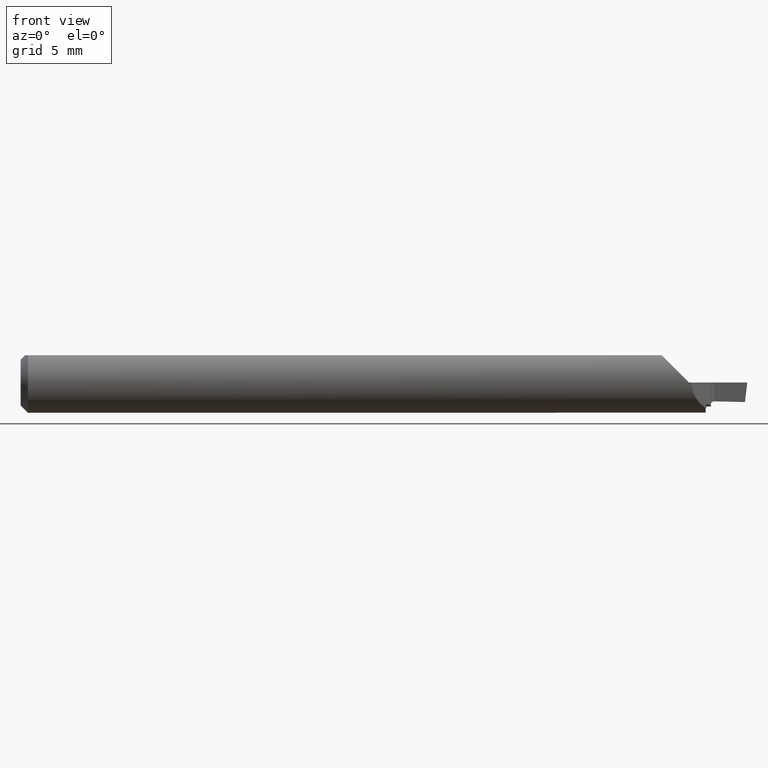
[diagram: clean part render]
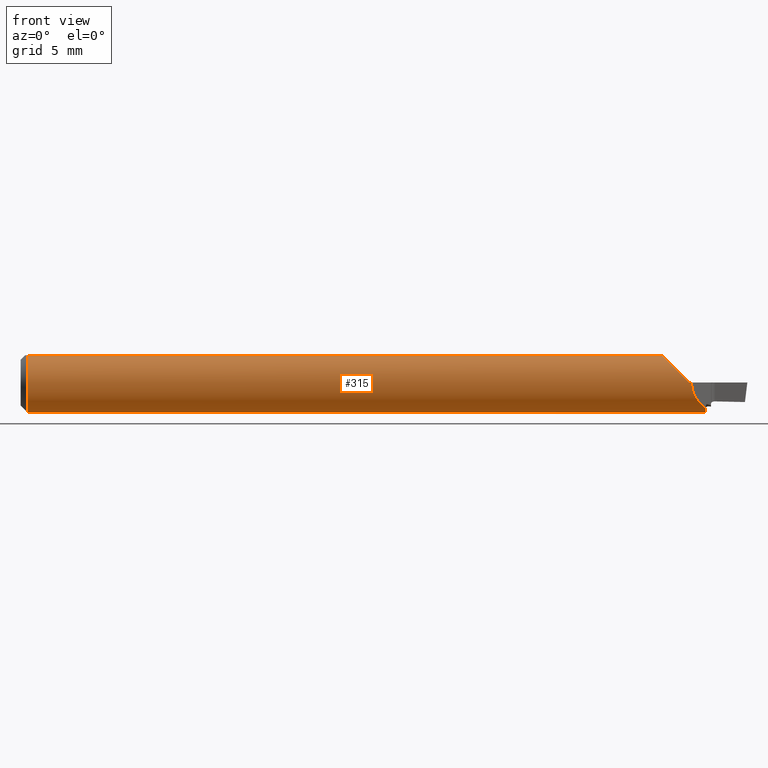
[diagram: same view with one face highlighted and labeled with its STEP entity id]
A machine part, front view. The second image highlights one B-rep face of the part: STEP entity #315.
In plain terms, the highlighted cylindrical surface (edge-blend (fillet) strip) has radius 1.5837 mm, axis along (-1, -0, -0).
Its self-contained STEP definition (entity closure, byte-faithful):
#9 = B_SPLINE_CURVE_WITH_KNOTS ( 'NONE', 3,
 ( #183, #193, #57, #405, #768, #513, #536, #657, #460, #130, #259, #850, #593, #654 ),
 .UNSPECIFIED., .F., .F.,
 ( 4, 2, 2, 2, 2, 2, 4 ),
 ( 1.969247296002426663E-07, 2.779231371840833157E-05, 5.538770270721642087E-05, 0.0001105784806848325520, 0.0002209600366400678501, 0.0004417231485505385006, 0.0008832493723714796930 ),
 .UNSPECIFIED. ) ;
#14 = VERTEX_POINT ( 'NONE', #786 ) ;
#19 = LINE ( 'NONE', #225, #698 ) ;
#20 = VERTEX_POINT ( 'NONE', #472 ) ;
#26 = CARTESIAN_POINT ( 'NONE',  ( 0.01500000000000011394, 0.000000000000000000, 0.000000000000000000 ) ) ;
#28 = EDGE_CURVE ( 'NONE', #468, #14, #574, .T. ) ;
#42 = ORIENTED_EDGE ( 'NONE', *, *, #564, .T. ) ;
#50 = CARTESIAN_POINT ( 'NONE',  ( 0.000000000000000000, 0.000000000000000000, 0.000000000000000000 ) ) ;
#53 = CARTESIAN_POINT ( 'NONE',  ( 1.323499999999999677, -0.02668707552355638682, 0.05634999999999998344 ) ) ;
#55 = ORIENTED_EDGE ( 'NONE', *, *, #660, .T. ) ;
#57 = CARTESIAN_POINT ( 'NONE',  ( 1.104319580330644035, -0.003902547811360122451, -0.06222834581043044239 ) ) ;
#78 = CARTESIAN_POINT ( 'NONE',  ( 1.323499999999999677, -0.02668707552355638682, 0.05634999999999998344 ) ) ;
#79 = LINE ( 'NONE', #370, #363 ) ;
#89 = DIRECTION ( 'NONE',  ( -1.000000000000000000, -0.000000000000000000, -0.000000000000000000 ) ) ;
#92 = CIRCLE ( 'NONE', #576, 0.06235000000000000264 ) ;
#94 = CARTESIAN_POINT ( 'NONE',  ( 0.01500000000000011394, 0.02668707552355635559, 0.05635000000000000425 ) ) ;
#97 = CARTESIAN_POINT ( 'NONE',  ( 0.01500000000000011394, 0.000000000000000000, 0.000000000000000000 ) ) ;
#98 = CARTESIAN_POINT ( 'NONE',  ( 1.384999999999999787, -0.06234999999999998183, 0.000000000000000000 ) ) ;
#110 = AXIS2_PLACEMENT_3D ( 'NONE', #50, #719, #400 ) ;
#114 = VERTEX_POINT ( 'NONE', #741 ) ;
#121 = VERTEX_POINT ( 'NONE', #598 ) ;
#130 = CARTESIAN_POINT ( 'NONE',  ( 1.101213335745415689, 0.006224460120085395856, -0.06210157390335328820 ) ) ;
#131 = AXIS2_PLACEMENT_3D ( 'NONE', #133, #541, #139 ) ;
#133 = CARTESIAN_POINT ( 'NONE',  ( 1.100000000000000089, 0.000000000000000000, 0.000000000000000000 ) ) ;
#134 = VERTEX_POINT ( 'NONE', #700 ) ;
#139 = DIRECTION ( 'NONE',  ( 0.000000000000000000, 0.000000000000000000, -1.000000000000000000 ) ) ;
#152 = EDGE_CURVE ( 'NONE', #170, #612, #19, .T. ) ;
#158 = CARTESIAN_POINT ( 'NONE',  ( 1.414154425502611945, -0.03319557449738821941, -0.05277855941372736059 ) ) ;
#160 = CARTESIAN_POINT ( 'NONE',  ( 1.100000000000000089, 0.02786438881009973417, 0.05577722058546472073 ) ) ;
#170 = VERTEX_POINT ( 'NONE', #213 ) ;
#181 = VERTEX_POINT ( 'NONE', #810 ) ;
#183 = CARTESIAN_POINT ( 'NONE',  ( 1.104999999999999982, -0.004152913094840915767, -0.06221154083308578359 ) ) ;
#192 =( BOUNDED_CURVE ( )  B_SPLINE_CURVE ( 3, ( #511, #310, #307, #243 ),
 .UNSPECIFIED., .F., .T. ) 
 B_SPLINE_CURVE_WITH_KNOTS ( ( 4, 4 ),
 ( 1.637452139464578682, 2.132237832494114915 ),
 .UNSPECIFIED. ) 
 CURVE ( )  GEOMETRIC_REPRESENTATION_ITEM ( )  RATIONAL_B_SPLINE_CURVE ( ( 1.000000000000000000, 0.9797027654045171730, 0.9797027654045171730, 1.000000000000000000 ) ) 
 REPRESENTATION_ITEM ( '' )  );
#193 = CARTESIAN_POINT ( 'NONE',  ( 1.104632508610592811, -0.004152913094840731886, -0.06221154083308579746 ) ) ;
#213 = CARTESIAN_POINT ( 'NONE',  ( 1.413647483962142459, -0.004152913094841584503, -0.06221154083308579746 ) ) ;
#216 = CARTESIAN_POINT ( 'NONE',  ( 1.334111011196256191, -0.04909232110324725923, 0.04573898880374377418 ) ) ;
#222 = EDGE_CURVE ( 'NONE', #320, #181, #79, .T. ) ;
#224 = CARTESIAN_POINT ( 'NONE',  ( 1.379849999999998911, -0.06235000000000000264, 0.000000000000000000 ) ) ;
#225 = CARTESIAN_POINT ( 'NONE',  ( 1.261000000000000121, -0.004152913094840908828, -0.06221154083308578359 ) ) ;
#228 = EDGE_CURVE ( 'NONE', #20, #535, #354, .T. ) ;
#229 = DIRECTION ( 'NONE',  ( 1.000000000000000000, 0.000000000000000000, 0.000000000000000000 ) ) ;
#235 = CARTESIAN_POINT ( 'NONE',  ( 0.000000000000000000, -0.06234999999999999570, 0.000000000000000000 ) ) ;
#241 = CARTESIAN_POINT ( 'NONE',  ( 1.384999999999999787, -0.06235000000000000264, -0.02192039626363508770 ) ) ;
#243 = CARTESIAN_POINT ( 'NONE',  ( 1.414154425502611945, -0.03319557449738821941, -0.05277855941372736059 ) ) ;
#248 = EDGE_CURVE ( 'NONE', #14, #134, #442, .T. ) ;
#254 =( BOUNDED_CURVE ( )  B_SPLINE_CURVE ( 3, ( #158, #512, #241, #98 ),
 .UNSPECIFIED., .F., .T. ) 
 B_SPLINE_CURVE_WITH_KNOTS ( ( 4, 4 ),
 ( 5.273830486083906699, 6.283185307179586232 ),
 .UNSPECIFIED. ) 
 CURVE ( )  GEOMETRIC_REPRESENTATION_ITEM ( )  RATIONAL_B_SPLINE_CURVE ( ( 1.000000000000000000, 0.9168870000423743338, 0.9168870000423743338, 1.000000000000000000 ) ) 
 REPRESENTATION_ITEM ( '' )  );
#259 = CARTESIAN_POINT ( 'NONE',  ( 1.100888183529233011, 0.009062329473077239753, -0.06175254173764931770 ) ) ;
#270 = VECTOR ( 'NONE', #89, 39.37007874015748143 ) ;
#273 = VECTOR ( 'NONE', #229, 39.37007874015748143 ) ;
#284 = EDGE_CURVE ( 'NONE', #612, #468, #9, .T. ) ;
#307 = CARTESIAN_POINT ( 'NONE',  ( 1.414000913818767691, -0.02440089602009297420, -0.05831005568449709742 ) ) ;
#310 = CARTESIAN_POINT ( 'NONE',  ( 1.413828432409653946, -0.01451944270993008046, -0.06151952620026911872 ) ) ;
#315 = ADVANCED_FACE ( 'NONE', ( #379 ), #845, .T. ) ;
#320 = VERTEX_POINT ( 'NONE', #53 ) ;
#322 =( BOUNDED_CURVE ( )  B_SPLINE_CURVE ( 3, ( #224, #558, #216, #78 ),
 .UNSPECIFIED., .F., .T. ) 
 B_SPLINE_CURVE_WITH_KNOTS ( ( 4, 4 ),
 ( 4.712388980384690562, 5.840883988228529944 ),
 .UNSPECIFIED. ) 
 CURVE ( )  GEOMETRIC_REPRESENTATION_ITEM ( )  RATIONAL_B_SPLINE_CURVE ( ( 1.000000000000000000, 0.8966608397084915305, 0.8966608397084915305, 1.000000000000000000 ) ) 
 REPRESENTATION_ITEM ( '' )  );
#354 = LINE ( 'NONE', #235, #270 ) ;
#360 = ORIENTED_EDGE ( 'NONE', *, *, #804, .T. ) ;
#361 = DIRECTION ( 'NONE',  ( 1.000000000000000000, 0.000000000000000000, 0.000000000000000000 ) ) ;
#363 = VECTOR ( 'NONE', #817, 39.37007874015748143 ) ;
#364 = CARTESIAN_POINT ( 'NONE',  ( 1.100003143776919323, 0.02668707552265704372, 0.05635000000042590662 ) ) ;
#370 = CARTESIAN_POINT ( 'NONE',  ( 0.000000000000000000, -0.02668707552355638682, 0.05634999999999998344 ) ) ;
#379 = FACE_OUTER_BOUND ( 'NONE', #456, .T. ) ;
#395 = ORIENTED_EDGE ( 'NONE', *, *, #284, .F. ) ;
#400 = DIRECTION ( 'NONE',  ( 0.000000000000000000, 0.000000000000000000, 1.000000000000000000 ) ) ;
#405 = CARTESIAN_POINT ( 'NONE',  ( 1.103846182137221632, -0.003357939695764049128, -0.06226010875931778377 ) ) ;
#412 = ORIENTED_EDGE ( 'NONE', *, *, #805, .T. ) ;
#423 = DIRECTION ( 'NONE',  ( -1.000000000000000000, -0.000000000000000000, -0.000000000000000000 ) ) ;
#429 = CARTESIAN_POINT ( 'NONE',  ( 1.379849999999998911, -0.06235000000000000264, 0.000000000000000000 ) ) ;
#430 = LINE ( 'NONE', #757, #273 ) ;
#436 = CARTESIAN_POINT ( 'NONE',  ( 1.100001031253992956, 0.02708199061453038167, 0.05616297020660548922 ) ) ;
#442 = B_SPLINE_CURVE_WITH_KNOTS ( 'NONE', 3,
 ( #160, #695, #436, #364 ),
 .UNSPECIFIED., .F., .F.,
 ( 4, 4 ),
 ( 0.001121338343646407706, 0.001154523113250658598 ),
 .UNSPECIFIED. ) ;
#456 = EDGE_LOOP ( 'NONE', ( #520, #633, #395, #628, #778, #360, #648, #55, #579, #42, #595, #412 ) ) ;
#460 = CARTESIAN_POINT ( 'NONE',  ( 1.101984351657180783, 0.002034333158501054010, -0.06233250123222452282 ) ) ;
#468 = VERTEX_POINT ( 'NONE', #539 ) ;
#472 = CARTESIAN_POINT ( 'NONE',  ( 1.384999999999999787, -0.06234999999999998183, 0.000000000000000000 ) ) ;
#474 = AXIS2_PLACEMENT_3D ( 'NONE', #26, #766, #569 ) ;
#499 = EDGE_CURVE ( 'NONE', #121, #568, #841, .T. ) ;
#511 = CARTESIAN_POINT ( 'NONE',  ( 1.413647483962142459, -0.004152913094841584503, -0.06221154083308579746 ) ) ;
#512 = CARTESIAN_POINT ( 'NONE',  ( 1.395599061644188232, -0.05175093835581173751, -0.04110798768667422998 ) ) ;
#513 = CARTESIAN_POINT ( 'NONE',  ( 1.103169756837540483, -0.002088831726871443004, -0.06231825958520766789 ) ) ;
#520 = ORIENTED_EDGE ( 'NONE', *, *, #248, .F. ) ;
#532 = EDGE_CURVE ( 'NONE', #170, #114, #192, .T. ) ;
#535 = VERTEX_POINT ( 'NONE', #429 ) ;
#536 = CARTESIAN_POINT ( 'NONE',  ( 1.102925519002766475, -0.001408148208076009239, -0.06233784861341238465 ) ) ;
#539 = CARTESIAN_POINT ( 'NONE',  ( 1.100000000000000089, 0.02786438880924875516, -0.05577722058604470817 ) ) ;
#541 = DIRECTION ( 'NONE',  ( 1.000000000000000000, 0.000000000000000000, 0.000000000000000000 ) ) ;
#558 = CARTESIAN_POINT ( 'NONE',  ( 1.355059102717058428, -0.06235000000000000958, 0.02479089728294102402 ) ) ;
#564 = EDGE_CURVE ( 'NONE', #181, #121, #92, .T. ) ;
#568 = VERTEX_POINT ( 'NONE', #94 ) ;
#569 = DIRECTION ( 'NONE',  ( 0.000000000000000000, 0.000000000000000000, -1.000000000000000000 ) ) ;
#574 = CIRCLE ( 'NONE', #131, 0.06235000000000000264 ) ;
#576 = AXIS2_PLACEMENT_3D ( 'NONE', #97, #361, #697 ) ;
#579 = ORIENTED_EDGE ( 'NONE', *, *, #222, .T. ) ;
#593 = CARTESIAN_POINT ( 'NONE',  ( 1.100000000000010969, 0.02276901145797667614, -0.05832269657328792434 ) ) ;
#595 = ORIENTED_EDGE ( 'NONE', *, *, #499, .T. ) ;
#598 = CARTESIAN_POINT ( 'NONE',  ( 0.01500000000000011394, 0.000000000000000000, -0.06235000000000001652 ) ) ;
#612 = VERTEX_POINT ( 'NONE', #840 ) ;
#628 = ORIENTED_EDGE ( 'NONE', *, *, #152, .F. ) ;
#633 = ORIENTED_EDGE ( 'NONE', *, *, #28, .F. ) ;
#648 = ORIENTED_EDGE ( 'NONE', *, *, #228, .T. ) ;
#654 = CARTESIAN_POINT ( 'NONE',  ( 1.100000000000000089, 0.02786438880924875516, -0.05577722058604470817 ) ) ;
#657 = CARTESIAN_POINT ( 'NONE',  ( 1.102283882241071211, 0.0006434833552244570865, -0.06236168241532662887 ) ) ;
#660 = EDGE_CURVE ( 'NONE', #535, #320, #322, .T. ) ;
#695 = CARTESIAN_POINT ( 'NONE',  ( 1.099999999999999201, 0.02747442220461659632, 0.05597203454363761099 ) ) ;
#697 = DIRECTION ( 'NONE',  ( 0.000000000000000000, 0.000000000000000000, -1.000000000000000000 ) ) ;
#698 = VECTOR ( 'NONE', #423, 39.37007874015748143 ) ;
#700 = CARTESIAN_POINT ( 'NONE',  ( 1.100003143776919323, 0.02668707552265704372, 0.05635000000042590662 ) ) ;
#719 = DIRECTION ( 'NONE',  ( -1.000000000000000000, -0.000000000000000000, -0.000000000000000000 ) ) ;
#741 = CARTESIAN_POINT ( 'NONE',  ( 1.414154425502611945, -0.03319557449738821941, -0.05277855941372736059 ) ) ;
#757 = CARTESIAN_POINT ( 'NONE',  ( 0.000000000000000000, 0.02668707552355638682, 0.05634999999999998344 ) ) ;
#766 = DIRECTION ( 'NONE',  ( 1.000000000000000000, 0.000000000000000000, 0.000000000000000000 ) ) ;
#768 = CARTESIAN_POINT ( 'NONE',  ( 1.103659940434657205, -0.003043920154951255258, -0.06227646906351073930 ) ) ;
#778 = ORIENTED_EDGE ( 'NONE', *, *, #532, .T. ) ;
#786 = CARTESIAN_POINT ( 'NONE',  ( 1.100000000000000089, 0.02786438881009973417, 0.05577722058546472073 ) ) ;
#804 = EDGE_CURVE ( 'NONE', #114, #20, #254, .T. ) ;
#805 = EDGE_CURVE ( 'NONE', #568, #134, #430, .T. ) ;
#810 = CARTESIAN_POINT ( 'NONE',  ( 0.01499999999996637530, -0.02668707552368985297, 0.05635000000000000425 ) ) ;
#817 = DIRECTION ( 'NONE',  ( -1.000000000000000000, -0.000000000000000000, -0.000000000000000000 ) ) ;
#840 = CARTESIAN_POINT ( 'NONE',  ( 1.104999999999999982, -0.004152913094840915767, -0.06221154083308578359 ) ) ;
#841 = CIRCLE ( 'NONE', #474, 0.06235000000000000264 ) ;
#845 = CYLINDRICAL_SURFACE ( 'NONE', #110, 0.06235000000000000264 ) ;
#850 = CARTESIAN_POINT ( 'NONE',  ( 1.100156325789129141, 0.01738276238689337103, -0.06014383574362139329 ) ) ;